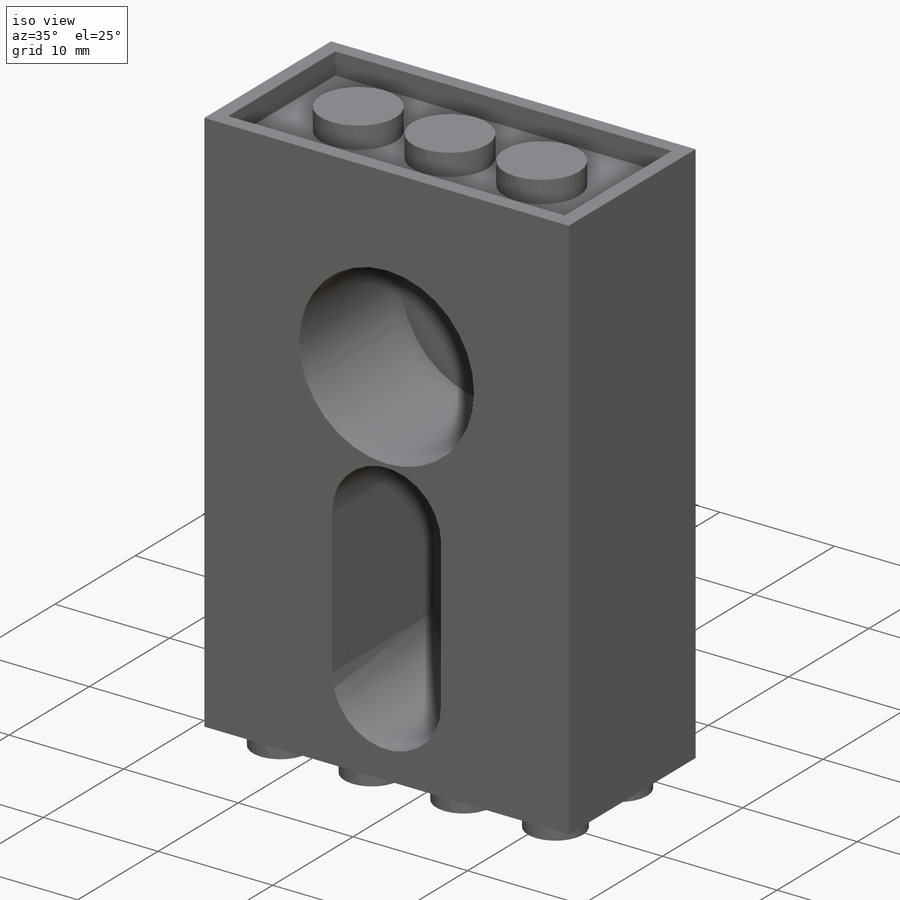
[diagram: iso view]
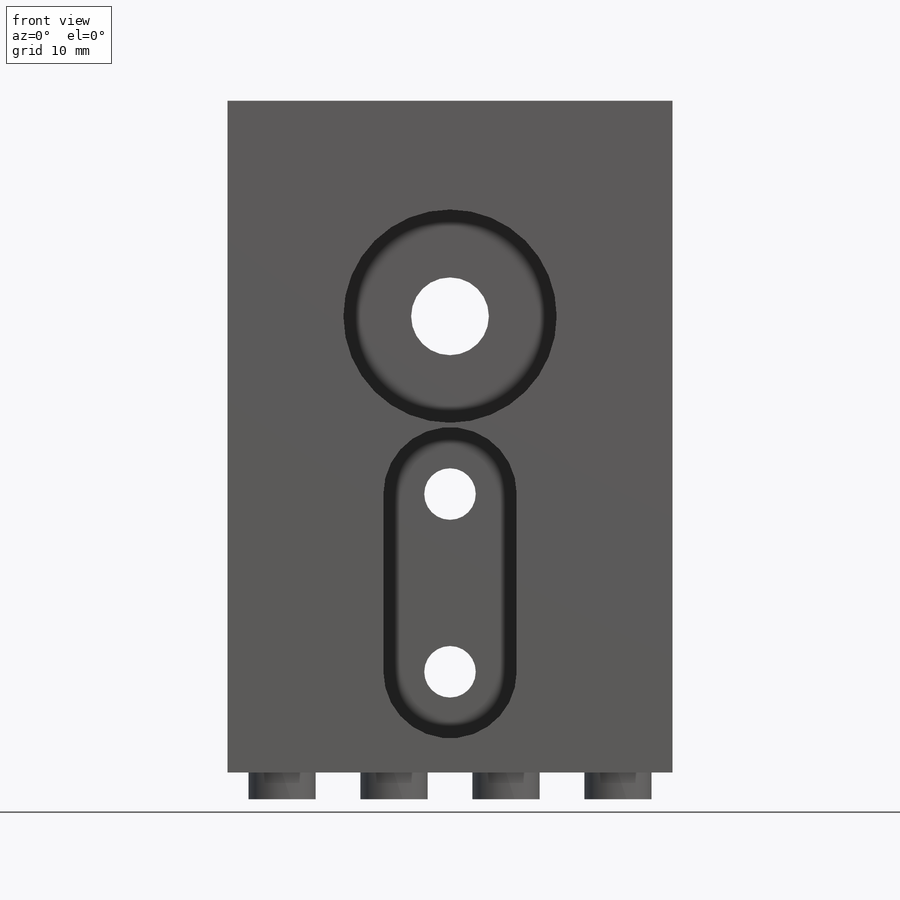
[diagram: front view]
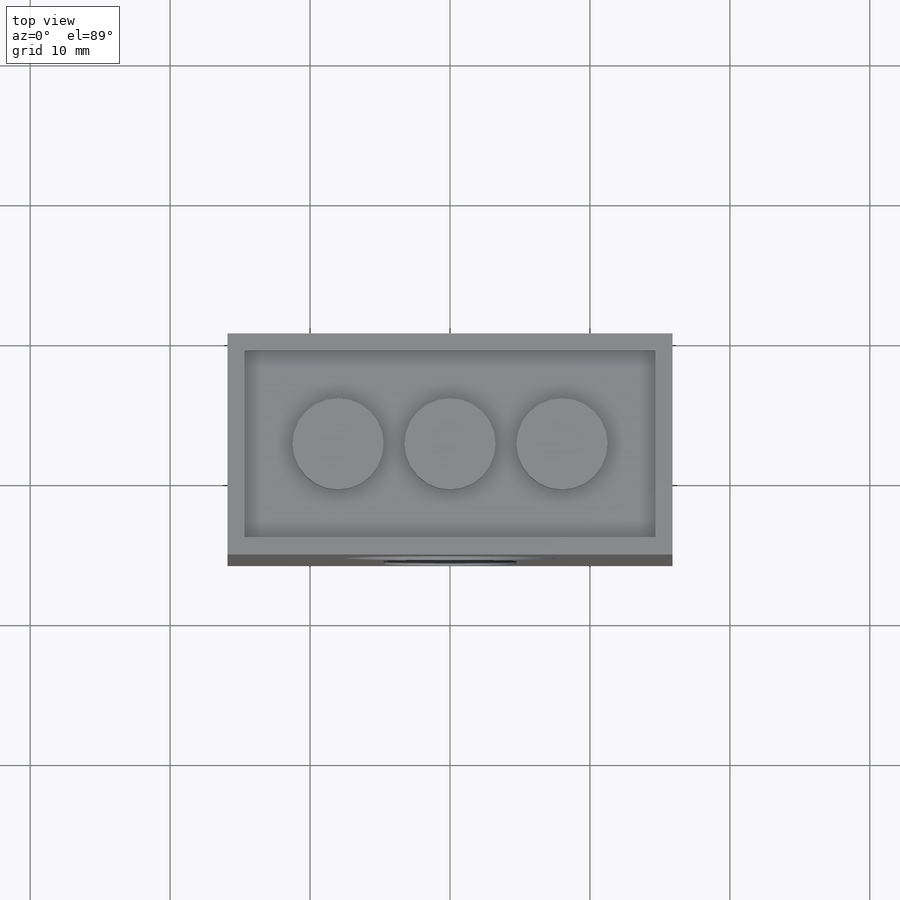
[diagram: top view]
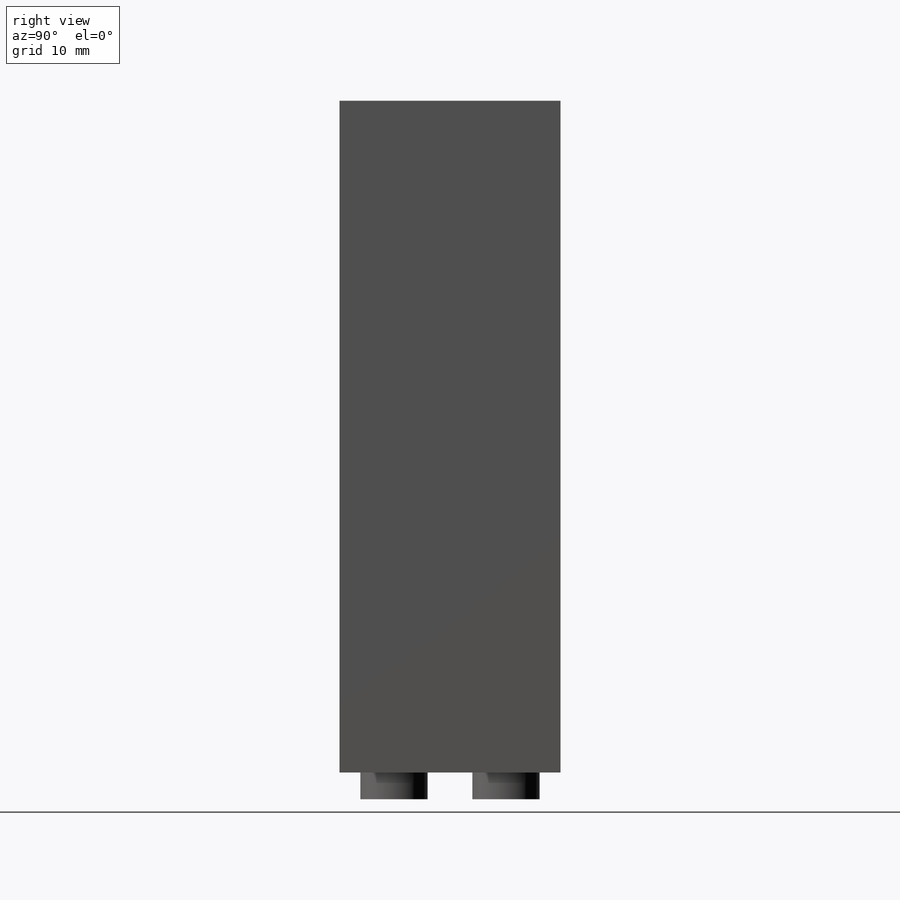
[diagram: right view]
SOLIDWORKS PART (.sldprt)
format: sldprt  version: not decoded by parser v0  size: 273,408 bytes
history: native  units: mm
features: sketch x6, cut_extrude x4, extrude x2, material x1 (+11 scaffold rows collapsed)
feature tree (24):
  scaffold x11  (default folders/planes/origin — collapsed)
  material  "Material <not specified>"
  sketch  "Sketch1"  dims[D1=48.0mm D2=31.8mm]
  extrude  "Boss-Extrude1"  Depth=15.8mm
  sketch  "Sketch2"  dims[c1.D1=4.7625mm c1.D4=15.24mm c1.D2=12.7mm c1.D3=12.7mm c1.D5=13.4mm c1.D6=15.9mm c1.D7=15.9mm c2.D5=15.4mm]
  cut_extrude  "Cut-Extrude1"  Depth=12.7mm
  sketch  "Sketch3"  dims[c1.D1=5.5563mm c1.D2=3.683mm c1.D3=3.683mm c1.D4=15.4mm c1.D5=12.7mm c1.D6=12.7mm c2.D1=0.0mm]
  cut_extrude  "Cut-Extrude2"  Depth=12.7mm
  sketch  "Sketch4"  dims[D1=0.0mm D2=0.0mm]
  cut_extrude  "Cut-Extrude3"  Depth=1.905mm
  sketch  "Sketch5"  dims[D1=4.8mm D2=4.8mm D3=8.0mm D4=3.9mm D5=3.9mm D6=3.9mm D7=4.0]
  extrude  "Boss-Extrude2"  Depth=1.905mm
  sketch  "Sketch6"  dims[c1.D5=6.521mm c1.D1=1.22mm c1.D2=1.22mm c1.D3=1.22mm c1.D4=1.22mm c1.D6=7.9mm c1.D7=~7.916882mm c2.D6=7.9mm c2.D7=7.9mm c2.D8=7.9mm c3.D8=3.0]
  cut_extrude  "Cut-Extrude4"  Depth=1.905mm
decode coverage: 12 of 12 modeling features carry decoded parameters
note: ~ marks probable driven/reference dimensions
note: suppression state not decoded; provenance and decode notes live in map.json
